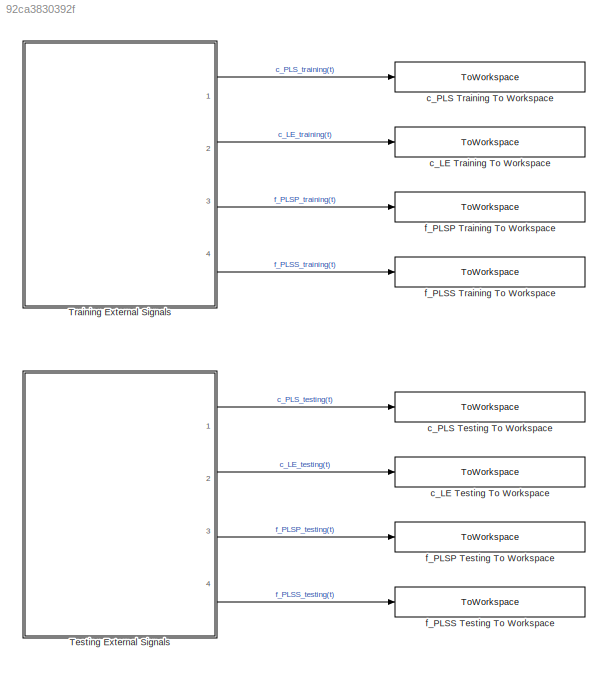
MODEL slx_92ca3830392f
KIND model
CONFIG AbsTol = auto
CONFIG EnableMultiTasking = off
CONFIG FixedStep = sampling_time
CONFIG MaxStep = auto
CONFIG MinStep = auto
CONFIG RelTol = 1e-3
CONFIG SampleTimeConstraint = Unconstrained
CONFIG SolverName = ode14x
CONFIG StartTime = 0.0
CONFIG StopTime = simulation_time
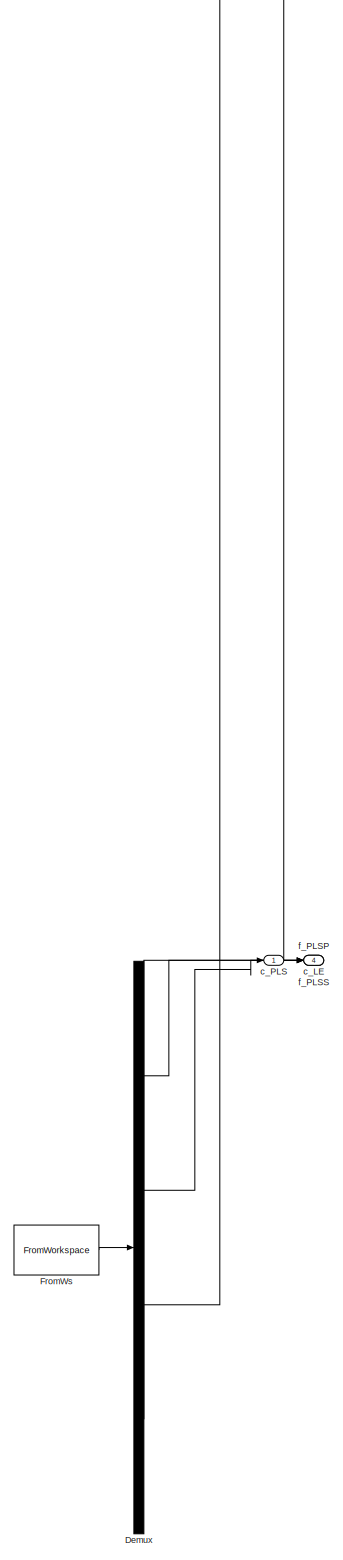
[diagram: Testing External Signals - part 1/1, full width, bottom band]
BLOCK [SubSystem] Testing External Signals
  ClipboardFcn = sigbuilder_block('clipboard');
  CloseFcn = sigbuilder_block('close');
  ContinueFcn = sigbuilder_block('continue');
  CopyFcn = sigbuilder_block('copy');
  DeleteFcn = sigbuilder_block('delete');
  LoadFcn = sigbuilder_block('load');
  MaskHideContents = on
  ModelCloseFcn = sigbuilder_block('modelClose');
  NameChangeFcn = sigbuilder_block('namechange');
  OpenFcn = sigbuilder_block('open',[0 30 1440 722.25 ]);
  PauseFcn = sigbuilder_block('pause');
  Ports = [0, 4]
  PreSaveFcn = sigbuilder_block('preSave');
  RequestExecContextInheritance = off
  StartFcn = sigbuilder_block('start');
  StopFcn = sigbuilder_block('stop');
  Tag = STV Subsys
BLOCK [Demux] Testing External Signals/Demux
  DisplayOption = none
  Ports = [1, 4]
  Tag = STV Demux
BLOCK [FromWorkspace] Testing External Signals/FromWs
  Tag = STV FromWs
  VariableName = tuvar
BLOCK [Outport] Testing External Signals/c_LE
  Port = 2
  Tag = STV Outport
BLOCK [Outport] Testing External Signals/c_PLS
  Tag = STV Outport
BLOCK [Outport] Testing External Signals/f_PLSP
  Port = 3
  Tag = STV Outport
BLOCK [Outport] Testing External Signals/f_PLSS
  Port = 4
  Tag = STV Outport
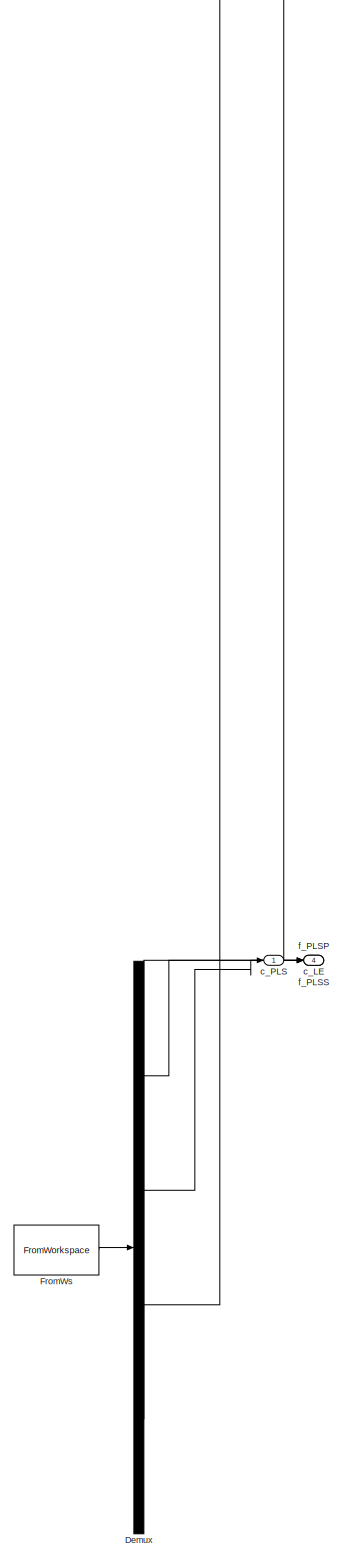
[diagram: Training External Signals - part 1/1, full width, bottom band]
BLOCK [SubSystem] Training External Signals
  ClipboardFcn = sigbuilder_block('clipboard');
  CloseFcn = sigbuilder_block('close');
  ContinueFcn = sigbuilder_block('continue');
  CopyFcn = sigbuilder_block('copy');
  DeleteFcn = sigbuilder_block('delete');
  LoadFcn = sigbuilder_block('load');
  MaskHideContents = on
  ModelCloseFcn = sigbuilder_block('modelClose');
  NameChangeFcn = sigbuilder_block('namechange');
  OpenFcn = sigbuilder_block('open',[0 30 1440 722.25 ]);
  PauseFcn = sigbuilder_block('pause');
  Ports = [0, 4]
  PreSaveFcn = sigbuilder_block('preSave');
  RequestExecContextInheritance = off
  StartFcn = sigbuilder_block('start');
  StopFcn = sigbuilder_block('stop');
  Tag = STV Subsys
BLOCK [Demux] Training External Signals/Demux
  DisplayOption = none
  Ports = [1, 4]
  Tag = STV Demux
BLOCK [FromWorkspace] Training External Signals/FromWs
  Tag = STV FromWs
  VariableName = tuvar
BLOCK [Outport] Training External Signals/c_LE
  Port = 2
  Tag = STV Outport
BLOCK [Outport] Training External Signals/c_PLS
  Tag = STV Outport
BLOCK [Outport] Training External Signals/f_PLSP
  Port = 3
  Tag = STV Outport
BLOCK [Outport] Training External Signals/f_PLSS
  Port = 4
  Tag = STV Outport
BLOCK [ToWorkspace] c_LE Testing To Workspace
  FixptAsFi = on
  MaxDataPoints = inf
  Ports = [1]
  SampleTime = -1
  SaveFormat = Timeseries
  VariableName = c_LE_testing
BLOCK [ToWorkspace] c_LE Training To Workspace
  FixptAsFi = on
  MaxDataPoints = inf
  Ports = [1]
  SampleTime = -1
  SaveFormat = Timeseries
  VariableName = c_LE_training
BLOCK [ToWorkspace] c_PLS Testing To Workspace
  FixptAsFi = on
  MaxDataPoints = inf
  Ports = [1]
  SampleTime = -1
  SaveFormat = Timeseries
  VariableName = c_PLS_testing
BLOCK [ToWorkspace] c_PLS Training To Workspace
  FixptAsFi = on
  MaxDataPoints = inf
  Ports = [1]
  SampleTime = -1
  SaveFormat = Timeseries
  VariableName = c_PLS_training
BLOCK [ToWorkspace] f_PLSP Testing To Workspace
  FixptAsFi = on
  MaxDataPoints = inf
  Ports = [1]
  SampleTime = -1
  SaveFormat = Timeseries
  VariableName = f_PLSP_testing
BLOCK [ToWorkspace] f_PLSP Training To Workspace
  FixptAsFi = on
  MaxDataPoints = inf
  Ports = [1]
  SampleTime = -1
  SaveFormat = Timeseries
  VariableName = f_PLSP_training
BLOCK [ToWorkspace] f_PLSS Testing To Workspace
  FixptAsFi = on
  MaxDataPoints = inf
  Ports = [1]
  SampleTime = -1
  SaveFormat = Timeseries
  VariableName = f_PLSS_testing
BLOCK [ToWorkspace] f_PLSS Training To Workspace
  FixptAsFi = on
  MaxDataPoints = inf
  Ports = [1]
  SampleTime = -1
  SaveFormat = Timeseries
  VariableName = f_PLSS_training
LINE Testing External Signals:1 -> c_PLS Testing To Workspace:1
LINE Testing External Signals:2 -> c_LE Testing To Workspace:1
LINE Testing External Signals:3 -> f_PLSP Testing To Workspace:1
LINE Testing External Signals:4 -> f_PLSS Testing To Workspace:1
LINE Training External Signals:1 -> c_PLS Training To Workspace:1
LINE Training External Signals:2 -> c_LE Training To Workspace:1
LINE Training External Signals:3 -> f_PLSP Training To Workspace:1
LINE Training External Signals:4 -> f_PLSS Training To Workspace:1
